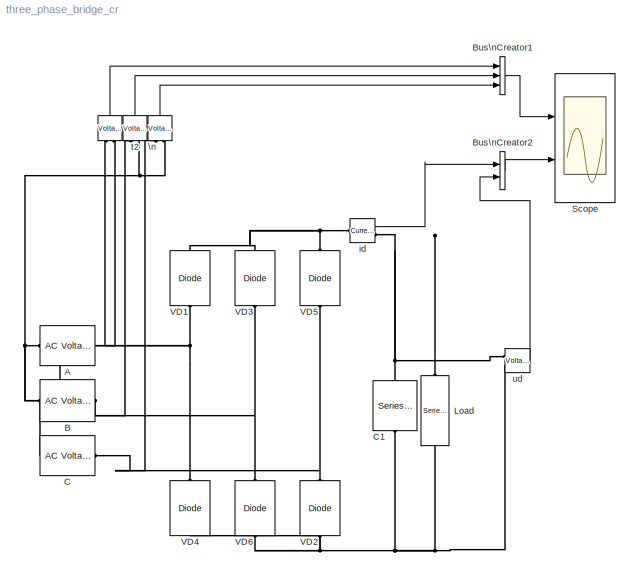
MODEL three_phase_bridge_cr
KIND model
BLOCK [Reference]    REF=powerlib/Measurements/Voltage Measurement
  OutputType = Complex
  PSBequivalent = 0
  PhasorSimulation = off
  Ports = [0, 1, 0, 0, 0, 2]
  ShowPortLabels = on
  SourceBlock = powerlib/Measurements/Voltage Measurement
  SourceType = Voltage Measurement
BLOCK [Reference]   \n  REF=powerlib/Measurements/Voltage Measurement
  OutputType = Complex
  PSBequivalent = 0
  PhasorSimulation = off
  Ports = [0, 1, 0, 0, 0, 2]
  ShowPortLabels = on
  SourceBlock = powerlib/Measurements/Voltage Measurement
  SourceType = Voltage Measurement
BLOCK [Reference] A  REF=powerlib/Electrical\nSources/AC Voltage Source
  Amplitude = 50
  Frequency = 50
  Measurements = None
  Phase = 30
  Ports = [0, 0, 0, 0, 0, 1, 1]
  SampleTime = 0
  ShowPortLabels = on
  SourceBlock = powerlib/Electrical\nSources/AC Voltage Source
  SourceType = AC Voltage Source
BLOCK [Reference] B  REF=powerlib/Electrical\nSources/AC Voltage Source
  Amplitude = 50
  Frequency = 50
  Measurements = None
  Phase = -90
  Ports = [0, 0, 0, 0, 0, 1, 1]
  SampleTime = 0
  ShowPortLabels = on
  SourceBlock = powerlib/Electrical\nSources/AC Voltage Source
  SourceType = AC Voltage Source
BLOCK [BusCreator] Bus\nCreator1
  DialogController = Simulink.DDGSource_Bus
  DisplayOption = bar
  Inputs = 3
  Ports = [3, 1]
BLOCK [BusCreator] Bus\nCreator2
  DialogController = Simulink.DDGSource_Bus
  DisplayOption = bar
  Inputs = 2
  Ports = [2, 1]
BLOCK [Reference] C  REF=powerlib/Electrical\nSources/AC Voltage Source
  Amplitude = 50
  Frequency = 50
  Measurements = None
  Phase = -210
  Ports = [0, 0, 0, 0, 0, 1, 1]
  SampleTime = 0
  ShowPortLabels = on
  SourceBlock = powerlib/Electrical\nSources/AC Voltage Source
  SourceType = AC Voltage Source
BLOCK [Reference] C1  REF=powerlib/Elements/Series RLC Branch
  Capacitance = 0.002
  Inductance = 0
  LConnTagsString = __new0
  LeftPortType = p1
  Measurements = None
  PhysicalDomain = powersysdomain
  Ports = [0, 0, 0, 0, 0, 1, 1]
  RConnTagsString = __new0
  Resistance = 0
  RightPortType = p1
  SourceBlock = powerlib/Elements/Series RLC Branch
  SourceType = Series RLC Branch
  SubClassName = unknown
BLOCK [Reference] Load  REF=powerlib/Elements/Series RLC Branch
  Capacitance = inf
  Inductance = 0
  LConnTagsString = __new0
  LeftPortType = p1
  Measurements = None
  PhysicalDomain = powersysdomain
  Ports = [0, 0, 0, 0, 0, 1, 1]
  RConnTagsString = __new0
  Resistance = 5
  RightPortType = p1
  SourceBlock = powerlib/Elements/Series RLC Branch
  SourceType = Series RLC Branch
  SubClassName = unknown
BLOCK [Scope] Scope
  DataFormat = StructureWithTime
  Decimation = 5
  NumInputPorts = 2
  Ports = [2]
  SampleInput = on
  SampleTime = 1e-4
  TimeRange = 0.05
  YMax = 50~100
  YMin = -50~0
BLOCK [Reference] VD1  REF=powerlib/Power\nElectronics/Diode
  Cs = 250e-9
  IC = 0
  Lon = 0
  Measurements = off
  Ports = [0, 0, 0, 0, 0, 1, 1]
  Ron = 0.001
  Rs = 500
  ShowPortLabels = on
  SourceBlock = powerlib/Power\nElectronics/Diode
  SourceType = Diode
  Vf = 0.8
BLOCK [Reference] VD2  REF=powerlib/Power\nElectronics/Diode
  Cs = 250e-9
  IC = 0
  Lon = 0
  Measurements = off
  Ports = [0, 0, 0, 0, 0, 1, 1]
  Ron = 0.001
  Rs = 500
  ShowPortLabels = on
  SourceBlock = powerlib/Power\nElectronics/Diode
  SourceType = Diode
  Vf = 0.8
BLOCK [Reference] VD3  REF=powerlib/Power\nElectronics/Diode
  Cs = 250e-9
  IC = 0
  Lon = 0
  Measurements = off
  Ports = [0, 0, 0, 0, 0, 1, 1]
  Ron = 0.001
  Rs = 500
  ShowPortLabels = on
  SourceBlock = powerlib/Power\nElectronics/Diode
  SourceType = Diode
  Vf = 0.8
BLOCK [Reference] VD4  REF=powerlib/Power\nElectronics/Diode
  Cs = 250e-9
  IC = 0
  Lon = 0
  Measurements = off
  Ports = [0, 0, 0, 0, 0, 1, 1]
  Ron = 0.001
  Rs = 500
  ShowPortLabels = on
  SourceBlock = powerlib/Power\nElectronics/Diode
  SourceType = Diode
  Vf = 0.8
BLOCK [Reference] VD5  REF=powerlib/Power\nElectronics/Diode
  Cs = 250e-9
  IC = 0
  Lon = 0
  Measurements = off
  Ports = [0, 0, 0, 0, 0, 1, 1]
  Ron = 0.001
  Rs = 500
  ShowPortLabels = on
  SourceBlock = powerlib/Power\nElectronics/Diode
  SourceType = Diode
  Vf = 0.8
BLOCK [Reference] VD6  REF=powerlib/Power\nElectronics/Diode
  Cs = 250e-9
  IC = 0
  Lon = 0
  Measurements = off
  Ports = [0, 0, 0, 0, 0, 1, 1]
  Ron = 0.001
  Rs = 500
  ShowPortLabels = on
  SourceBlock = powerlib/Power\nElectronics/Diode
  SourceType = Diode
  Vf = 0.8
BLOCK [Reference] id  REF=powerlib/Measurements/Current Measurement
  OutputType = Complex
  PSBequivalent = 0
  PhasorSimulation = off
  Ports = [0, 1, 0, 0, 0, 1, 1]
  ShowPortLabels = on
  SourceBlock = powerlib/Measurements/Current Measurement
  SourceType = Current Measurement
BLOCK [Reference] t2  REF=powerlib/Measurements/Voltage Measurement
  OutputType = Complex
  PSBequivalent = 0
  PhasorSimulation = off
  Ports = [0, 1, 0, 0, 0, 2]
  ShowPortLabels = on
  SourceBlock = powerlib/Measurements/Voltage Measurement
  SourceType = Voltage Measurement
BLOCK [Reference] ud  REF=powerlib/Measurements/Voltage Measurement
  OutputType = Complex
  PSBequivalent = 0
  PhasorSimulation = off
  Ports = [0, 1, 0, 0, 0, 2]
  ShowPortLabels = on
  SourceBlock = powerlib/Measurements/Voltage Measurement
  SourceType = Voltage Measurement
LINE   \n:1 -> Bus\nCreator1:3
LINE  :1 -> Bus\nCreator1:1
LINE Bus\nCreator1:1 -> Scope:1
LINE Bus\nCreator2:1 -> Scope:2
LINE id:1 -> Bus\nCreator2:1
LINE t2:1 -> Bus\nCreator1:2
LINE ud:1 -> Bus\nCreator2:2
PNET net1:   \n:LConn1 -- C:RConn1 -- VD2:RConn1 -- VD5:LConn1
PNET net2:   \n:LConn2 --  :LConn2 -- A:LConn1 -- B:LConn1 -- C:LConn1 -- t2:LConn2
PNET net3:  :LConn1 -- A:RConn1 -- VD1:LConn1 -- VD4:RConn1
PNET net4: B:RConn1 -- VD3:LConn1 -- VD6:RConn1 -- t2:LConn1
PNET net5: C1:LConn1 -- Load:RConn1 -- VD2:LConn1 -- VD4:LConn1 -- VD6:LConn1 -- ud:LConn2
PNET net6: C1:RConn1 -- Load:LConn1 -- id:RConn1 -- ud:LConn1
PNET net7: VD1:RConn1 -- VD3:RConn1 -- VD5:RConn1 -- id:LConn1
note: PNET lines group multi-terminal physical nets as a canonical sorted terminal list (undirected conserving connections); 2-terminal nets keep the pairwise PLINE form
